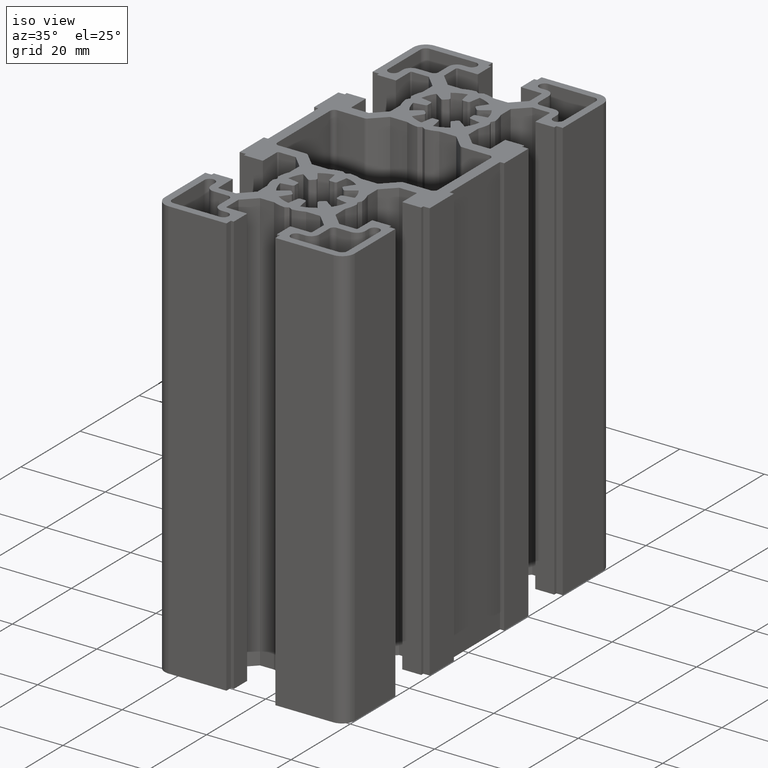
[diagram: clean part render]
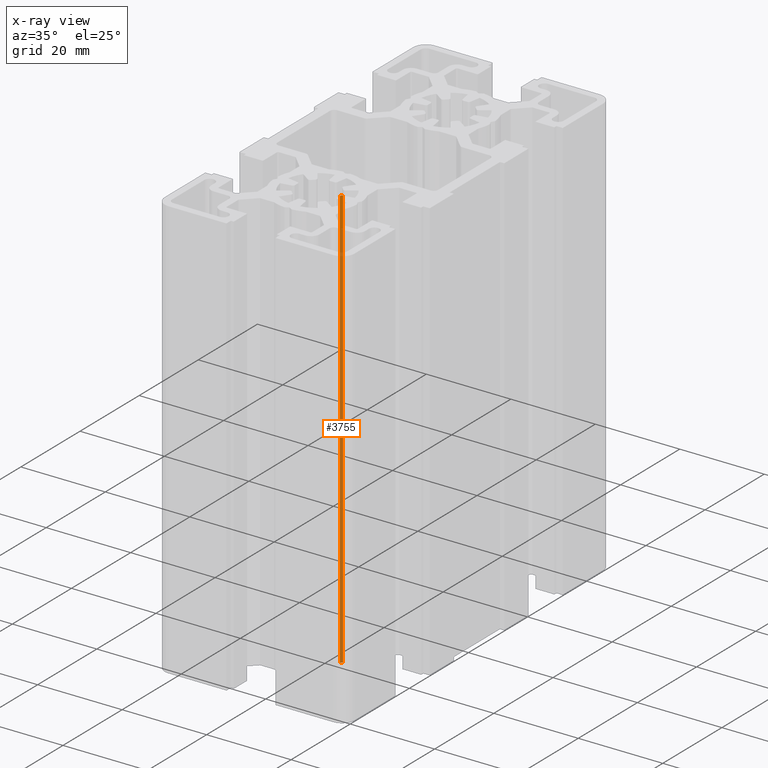
[diagram: x-ray — body ghosted, one internal face saturated and labeled with its STEP entity id]
A machine part, iso view, then the same camera in x-ray: the body is ghosted and one INTERNAL B-rep face — a face not visible from any outside direction — is saturated and labeled: STEP entity #3755.
In plain terms, the highlighted cylindrical surface (edge-blend (fillet) strip) has radius 0.5 mm, axis along (-0, -0, -1).
Its self-contained STEP definition (entity closure, byte-faithful):
#574 = VERTEX_POINT ( 'NONE', #4970 ) ;
#635 = EDGE_CURVE ( 'NONE', #1072, #574, #5127, .T. ) ;
#1046 = EDGE_CURVE ( 'NONE', #1763, #1072, #5828, .T. ) ;
#1072 = VERTEX_POINT ( 'NONE', #5883 ) ;
#1763 = VERTEX_POINT ( 'NONE', #7162 ) ;
#2051 = EDGE_CURVE ( 'NONE', #1763, #2059, #7669, .T. ) ;
#2059 = VERTEX_POINT ( 'NONE', #7661 ) ;
#3661 = ORIENTED_EDGE ( 'NONE', *, *, #1046, .F. ) ;
#3690 = ORIENTED_EDGE ( 'NONE', *, *, #3697, .T. ) ;
#3697 = EDGE_CURVE ( 'NONE', #2059, #574, #9678, .T. ) ;
#3699 = EDGE_LOOP ( 'NONE', ( #3661, #3754, #3690, #3753 ) ) ;
#3753 = ORIENTED_EDGE ( 'NONE', *, *, #635, .F. ) ;
#3754 = ORIENTED_EDGE ( 'NONE', *, *, #2051, .T. ) ;
#3755 = ADVANCED_FACE ( 'NONE', ( #9736 ), #9716, .T. ) ;
#4970 = CARTESIAN_POINT ( 'NONE',  ( 5.394014462644556800, -21.54889041583322000, 0.0000000000000000000 ) ) ;
#5108 = DIRECTION ( 'NONE',  ( -0.0000000000000000000, -0.0000000000000000000, -1.000000000000000000 ) ) ;
#5109 = CARTESIAN_POINT ( 'NONE',  ( 5.480838605845551800, -22.04129428275285800, 0.0000000000000000000 ) ) ;
#5120 = AXIS2_PLACEMENT_3D ( 'NONE', #5109, #5108, #5161 ) ;
#5127 = CIRCLE ( 'NONE', #5120, 0.5000000000000004400 ) ;
#5161 = DIRECTION ( 'NONE',  ( 1.000000000000000000, 0.0000000000000000000, 0.0000000000000000000 ) ) ;
#5828 = LINE ( 'NONE', #5871, #5870 ) ;
#5869 = DIRECTION ( 'NONE',  ( -0.0000000000000000000, -0.0000000000000000000, -1.000000000000000000 ) ) ;
#5870 = VECTOR ( 'NONE', #5869, 1000.000000000000000 ) ;
#5871 = CARTESIAN_POINT ( 'NONE',  ( 4.980838605845550900, -22.04129428275285800, 100.0000000000000000 ) ) ;
#5883 = CARTESIAN_POINT ( 'NONE',  ( 4.980838605845550900, -22.04129428275285800, 0.0000000000000000000 ) ) ;
#7162 = CARTESIAN_POINT ( 'NONE',  ( 4.980838605845550900, -22.04129428275285800, 100.0000000000000000 ) ) ;
#7631 = AXIS2_PLACEMENT_3D ( 'NONE', #7665, #7664, #7663 ) ;
#7661 = CARTESIAN_POINT ( 'NONE',  ( 5.394014462644556800, -21.54889041583322000, 100.0000000000000000 ) ) ;
#7663 = DIRECTION ( 'NONE',  ( 1.000000000000000000, 0.0000000000000000000, 0.0000000000000000000 ) ) ;
#7664 = DIRECTION ( 'NONE',  ( -0.0000000000000000000, -0.0000000000000000000, -1.000000000000000000 ) ) ;
#7665 = CARTESIAN_POINT ( 'NONE',  ( 5.480838605845551800, -22.04129428275285800, 100.0000000000000000 ) ) ;
#7669 = CIRCLE ( 'NONE', #7631, 0.5000000000000004400 ) ;
#9675 = DIRECTION ( 'NONE',  ( -0.0000000000000000000, -0.0000000000000000000, -1.000000000000000000 ) ) ;
#9676 = VECTOR ( 'NONE', #9675, 1000.000000000000000 ) ;
#9677 = CARTESIAN_POINT ( 'NONE',  ( 5.394014462644556800, -21.54889041583322000, 100.0000000000000000 ) ) ;
#9678 = LINE ( 'NONE', #9677, #9676 ) ;
#9716 = CYLINDRICAL_SURFACE ( 'NONE', #9719, 0.5000000000000004400 ) ;
#9719 = AXIS2_PLACEMENT_3D ( 'NONE', #9771, #9770, #9769 ) ;
#9736 = FACE_OUTER_BOUND ( 'NONE', #3699, .T. ) ;
#9769 = DIRECTION ( 'NONE',  ( -1.000000000000000000, 0.0000000000000000000, 0.0000000000000000000 ) ) ;
#9770 = DIRECTION ( 'NONE',  ( -0.0000000000000000000, -0.0000000000000000000, -1.000000000000000000 ) ) ;
#9771 = CARTESIAN_POINT ( 'NONE',  ( 5.480838605845551800, -22.04129428275285800, 100.0000000000000000 ) ) ;